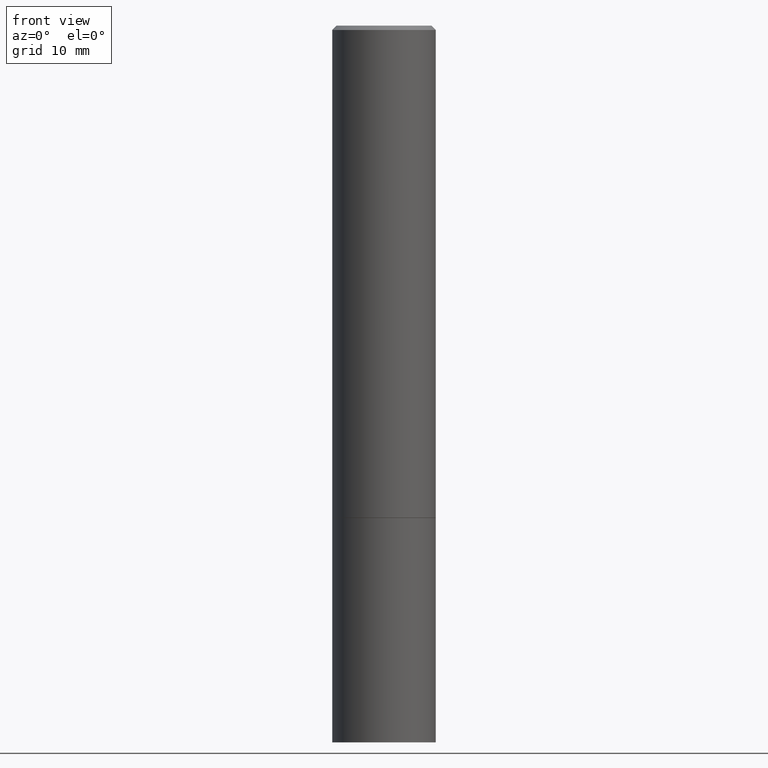
[diagram: clean part render]
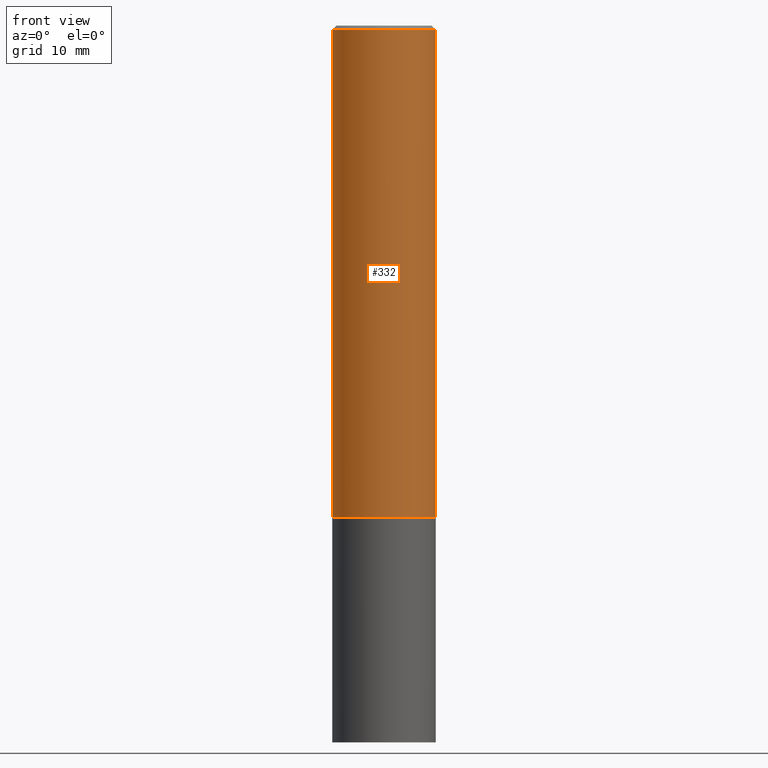
[diagram: same view with one face highlighted and labeled with its STEP entity id]
A machine part, front view. The second image highlights one B-rep face of the part: STEP entity #332.
In plain terms, the highlighted cylindrical surface (partial cylindrical patch) has radius 5.9995 mm, axis along (-0, 0, 1).
Its self-contained STEP definition (entity closure, byte-faithful):
#22 = EDGE_CURVE ( 'NONE', #198, #351, #141, .T. ) ;
#34 = CYLINDRICAL_SURFACE ( 'NONE', #103, 0.2361999999999998545 ) ;
#49 = CARTESIAN_POINT ( 'NONE',  ( -0.2362000000000000210, -2.272483767102602555E-15, -2.243100000000000094 ) ) ;
#52 = DIRECTION ( 'NONE',  ( -2.445468806185136597E-29, 3.491481338843145583E-15, 1.000000000000000000 ) ) ;
#58 = FACE_OUTER_BOUND ( 'NONE', #139, .T. ) ;
#65 = DIRECTION ( 'NONE',  ( 1.000000000000000000, -6.982962677686266711E-15, 0.000000000000000000 ) ) ;
#68 = CARTESIAN_POINT ( 'NONE',  ( 4.890937612370288923E-31, -6.982962677686312563E-17, -0.02000000000000006287 ) ) ;
#80 = VERTEX_POINT ( 'NONE', #259 ) ;
#97 = EDGE_CURVE ( 'NONE', #80, #351, #142, .T. ) ;
#103 = AXIS2_PLACEMENT_3D ( 'NONE', #164, #277, #108 ) ;
#108 = DIRECTION ( 'NONE',  ( 1.000000000000000000, -6.982962677686266711E-15, 4.876176775795935793E-29 ) ) ;
#112 = CARTESIAN_POINT ( 'NONE',  ( 0.2361999999999999933, -9.481117575628557435E-15, -2.243100000000000094 ) ) ;
#118 = ORIENTED_EDGE ( 'NONE', *, *, #22, .T. ) ;
#120 = VERTEX_POINT ( 'NONE', #49 ) ;
#139 = EDGE_LOOP ( 'NONE', ( #195, #203, #118, #309 ) ) ;
#141 = LINE ( 'NONE', #226, #157 ) ;
#142 = CIRCLE ( 'NONE', #307, 0.2361999999999996880 ) ;
#157 = VECTOR ( 'NONE', #342, 39.37007874015748143 ) ;
#161 = DIRECTION ( 'NONE',  ( 1.000000000000000000, -6.982962677686269077E-15, 0.000000000000000000 ) ) ;
#164 = CARTESIAN_POINT ( 'NONE',  ( 0.000000000000000000, 0.000000000000000000, 0.000000000000000000 ) ) ;
#169 = LINE ( 'NONE', #335, #189 ) ;
#182 = EDGE_CURVE ( 'NONE', #120, #80, #169, .T. ) ;
#189 = VECTOR ( 'NONE', #248, 39.37007874015748143 ) ;
#195 = ORIENTED_EDGE ( 'NONE', *, *, #182, .F. ) ;
#196 = CARTESIAN_POINT ( 'NONE',  ( 5.485431079153880270E-29, -7.831741791159060910E-15, -2.243100000000000094 ) ) ;
#198 = VERTEX_POINT ( 'NONE', #112 ) ;
#203 = ORIENTED_EDGE ( 'NONE', *, *, #327, .T. ) ;
#206 = DIRECTION ( 'NONE',  ( -2.445468806185136597E-29, 3.491481338843145583E-15, 1.000000000000000000 ) ) ;
#218 = CARTESIAN_POINT ( 'NONE',  ( 0.2361999999999996880, -1.690279253850496602E-15, -0.02000000000000006287 ) ) ;
#226 = CARTESIAN_POINT ( 'NONE',  ( 0.2361999999999998545, -1.649375784469495145E-15, 1.151752954442999387E-29 ) ) ;
#248 = DIRECTION ( 'NONE',  ( -2.445468806185136877E-29, 3.491481338843145188E-15, 1.000000000000000000 ) ) ;
#259 = CARTESIAN_POINT ( 'NONE',  ( -0.2361999999999996880, 1.579546157692630860E-15, -0.02000000000000006287 ) ) ;
#277 = DIRECTION ( 'NONE',  ( -2.445468806185136597E-29, 3.491481338843145583E-15, 1.000000000000000000 ) ) ;
#281 = AXIS2_PLACEMENT_3D ( 'NONE', #196, #52, #161 ) ;
#307 = AXIS2_PLACEMENT_3D ( 'NONE', #68, #206, #65 ) ;
#309 = ORIENTED_EDGE ( 'NONE', *, *, #97, .F. ) ;
#327 = EDGE_CURVE ( 'NONE', #120, #198, #338, .T. ) ;
#332 = ADVANCED_FACE ( 'NONE', ( #58 ), #34, .T. ) ;
#335 = CARTESIAN_POINT ( 'NONE',  ( -0.2361999999999998545, 1.678301941865355605E-15, -1.161852468318208056E-29 ) ) ;
#338 = CIRCLE ( 'NONE', #281, 0.2361999999999999933 ) ;
#342 = DIRECTION ( 'NONE',  ( -2.445468806185136877E-29, 3.491481338843145188E-15, 1.000000000000000000 ) ) ;
#351 = VERTEX_POINT ( 'NONE', #218 ) ;